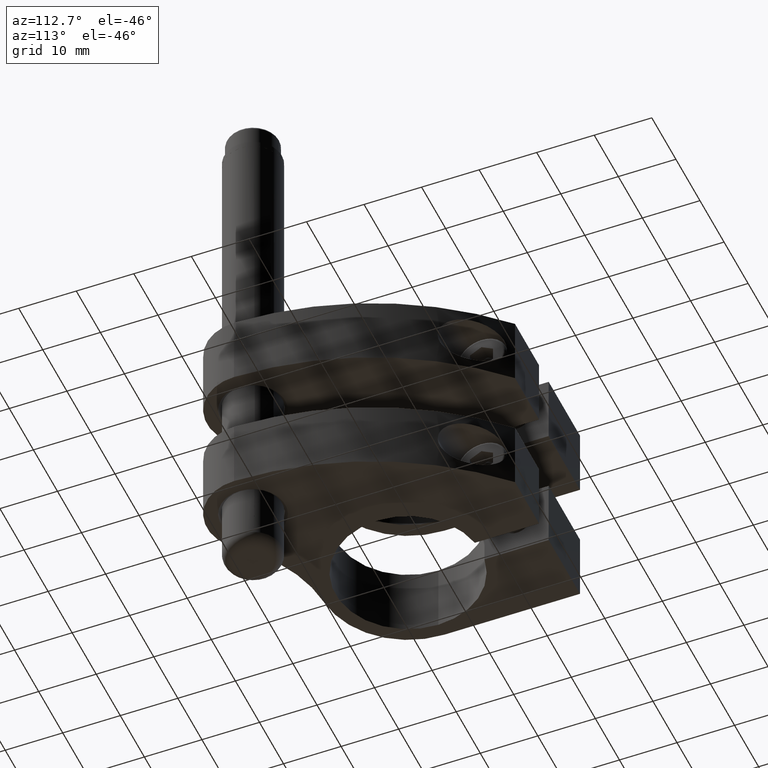
[diagram: clean part render]
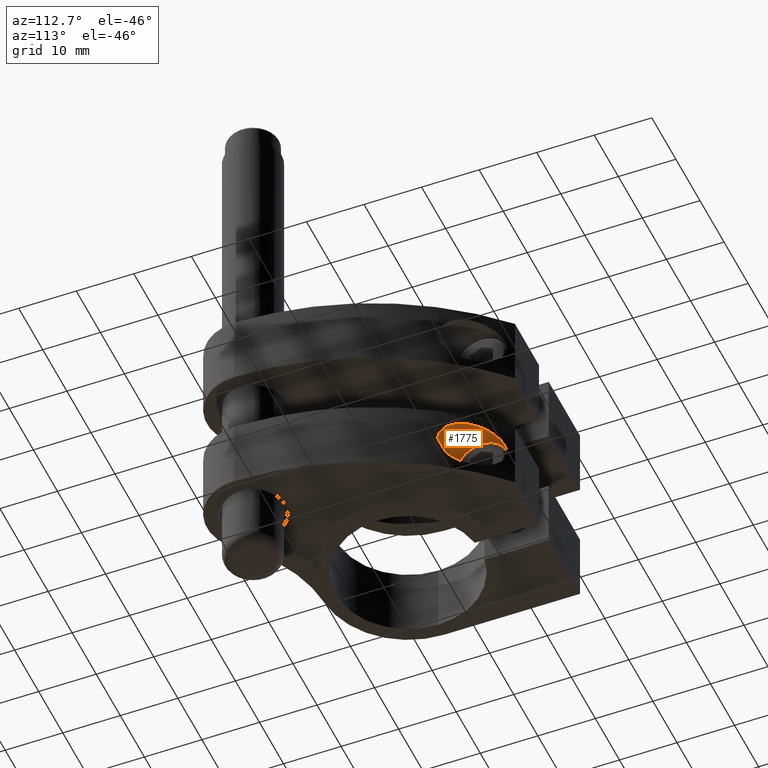
[diagram: same view with one face highlighted and labeled with its STEP entity id]
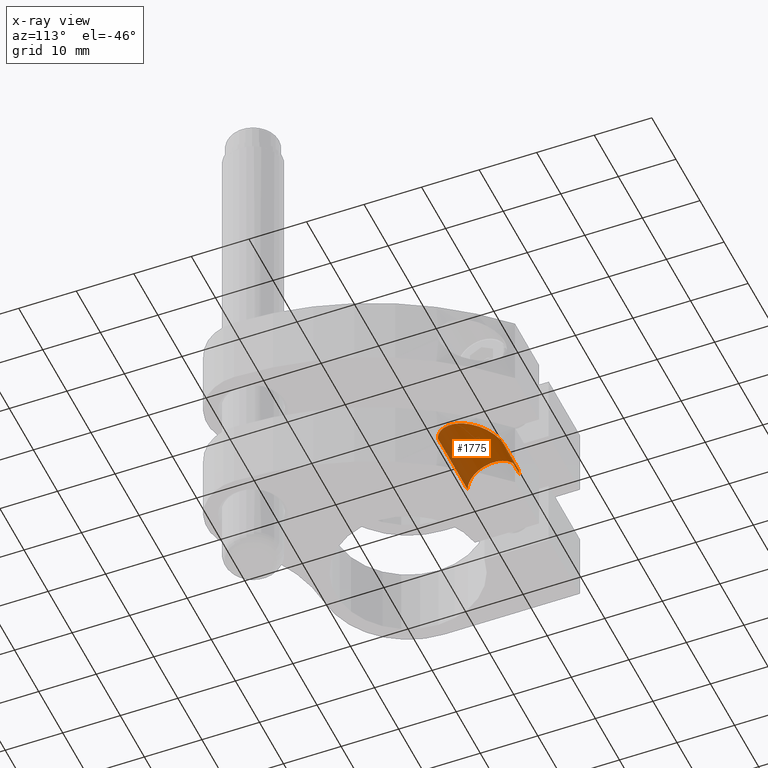
[diagram: x-ray of the same camera — body ghosted, the highlighted face saturated]
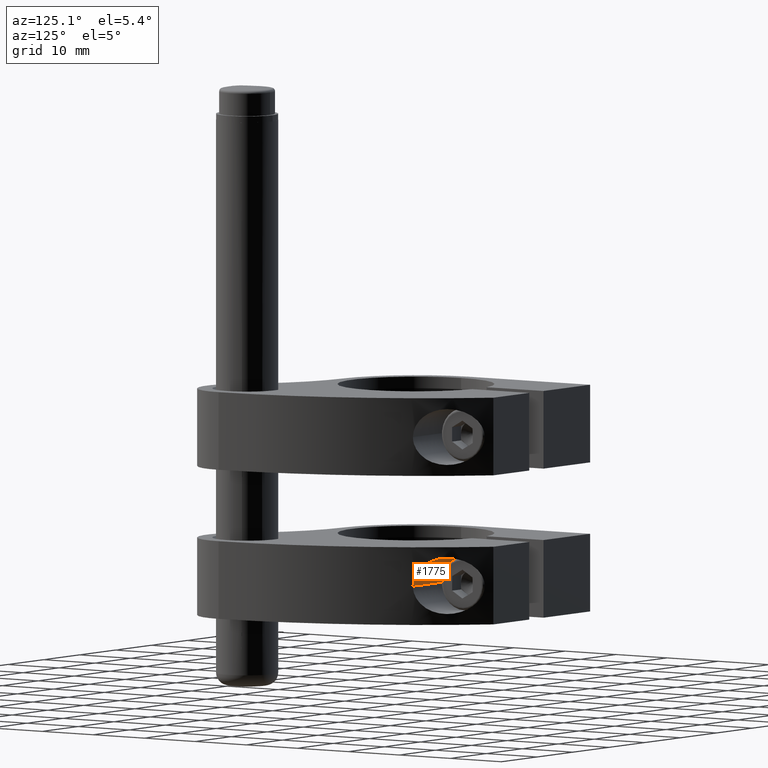
[diagram: same view with one face highlighted and labeled with its STEP entity id]
A machine part, auxiliary view. The second image highlights one B-rep face of the part: STEP entity #1775.
The next image is the same camera in x-ray: the body ghosted, the highlighted face saturated — about 0% of this face is hidden behind the body in this view.
A second angle (auxiliary view) of the same face is appended — the face is thin or edge-on in the first view.
In plain terms, the highlighted cylindrical surface (edge-blend (fillet) strip) has radius 4.5 mm, axis along (1, 0, 0).
Its self-contained STEP definition (entity closure, byte-faithful):
#319 = VERTEX_POINT ( 'NONE', #4362 ) ;
#712 = CARTESIAN_POINT ( 'NONE',  ( 22.00000000000000400, 13.60000000000000300, 5.510910596163092500E-016 ) ) ;
#1347 = CARTESIAN_POINT ( 'NONE',  ( 18.26138746625711600, 16.38812425043762000, 4.170764433054165100 ) ) ;
#1412 = CARTESIAN_POINT ( 'NONE',  ( 17.26674442611490800, 17.70409835429556000, 4.490592142943741600 ) ) ;
#1481 = CARTESIAN_POINT ( 'NONE',  ( 19.69385756879030300, 14.34576069367343700, 2.500520164326630400 ) ) ;
#1775 = ADVANCED_FACE ( 'NONE', ( #4455 ), #11853, .F. ) ;
#1863 = CARTESIAN_POINT ( 'NONE',  ( 14.19333279762864000, 21.33748890009842500, 3.138161982442612800 ) ) ;
#1871 = AXIS2_PLACEMENT_3D ( 'NONE', #4071, #2289, #9161 ) ;
#2119 = DIRECTION ( 'NONE',  ( 1.000000000000000000, 1.734723475976807100E-016, -0.0000000000000000000 ) ) ;
#2289 = DIRECTION ( 'NONE',  ( 1.000000000000000000, 1.734723475976807100E-016, -0.0000000000000000000 ) ) ;
#2358 = VERTEX_POINT ( 'NONE', #16514 ) ;
#2466 = DIRECTION ( 'NONE',  ( -1.927470528863117600E-016, 1.000000000000000000, 0.0000000000000000000 ) ) ;
#3108 = CARTESIAN_POINT ( 'NONE',  ( 17.67545133054979800, 17.17269939465492000, 4.411606226156883400 ) ) ;
#3187 = ORIENTED_EDGE ( 'NONE', *, *, #20841, .T. ) ;
#3250 = CARTESIAN_POINT ( 'NONE',  ( 18.97611665447396900, 15.39220003079903900, 3.606617838323842300 ) ) ;
#3401 = ORIENTED_EDGE ( 'NONE', *, *, #12336, .F. ) ;
#3632 = CARTESIAN_POINT ( 'NONE',  ( 12.99824119246399900, 22.60000000000000500, 0.0000000000000000000 ) ) ;
#4071 = CARTESIAN_POINT ( 'NONE',  ( 22.00000000000000400, 18.10000000000000500, 0.0000000000000000000 ) ) ;
#4362 = CARTESIAN_POINT ( 'NONE',  ( 7.798241192463999400, 22.60000000000000500, 0.0000000000000000000 ) ) ;
#4455 = FACE_OUTER_BOUND ( 'NONE', #7211, .T. ) ;
#4767 = CARTESIAN_POINT ( 'NONE',  ( 17.05723819785161400, 17.97168901311885100, 4.505831385192486500 ) ) ;
#5277 = CARTESIAN_POINT ( 'NONE',  ( 14.76173532736743400, 20.71236401813011300, 3.707173352031650100 ) ) ;
#5353 = CARTESIAN_POINT ( 'NONE',  ( 13.68712370514754700, 21.88160524217525100, 2.456760341653663200 ) ) ;
#5524 = B_SPLINE_CURVE_WITH_KNOTS ( 'NONE', 3,
 ( #19780, #11619, #16472, #21750, #13398, #9768, #6686, #16748, #1481, #18239, #21615, #3250, #13273, #11401, #1347, #11543, #3108, #1412, #4767, #16539, #14929, #16608, #18309, #8229, #5277, #1863, #16967, #5353, #16897, #13478, #8518, #13559, #11997, #8449, #20429, #3632 ),
 .UNSPECIFIED., .F., .F.,
 ( 4, 2, 2, 2, 2, 2, 2, 2, 2, 2, 2, 2, 2, 2, 2, 2, 2, 4 ),
 ( 0.01613481676497067700, 0.01713923997325539000, 0.01764145157739775000, 0.01814366318154010700, 0.01914808638982482300, 0.02015250959810954000, 0.02115693280639425300, 0.02216135601467896300, 0.02316577922296367300, 0.02417020243124838600, 0.02517462563953309900, 0.02617904884781781200, 0.02818789526438722500, 0.02919231847267193800, 0.03019674168095664400, 0.03069895328509900100, 0.03120116488924135800, 0.03220558809752606400 ),
 .UNSPECIFIED. ) ;
#6686 = CARTESIAN_POINT ( 'NONE',  ( 19.94537387800840700, 13.96664821119553100, 1.786508046137883100 ) ) ;
#7211 = EDGE_LOOP ( 'NONE', ( #20374, #3401, #3187, #15965 ) ) ;
#7794 = VECTOR ( 'NONE', #8825, 1000.000000000000000 ) ;
#8229 = CARTESIAN_POINT ( 'NONE',  ( 15.16552808978832800, 20.25605627659458800, 3.984755384399814500 ) ) ;
#8449 = CARTESIAN_POINT ( 'NONE',  ( 13.03575805905137700, 22.56159143338349800, 0.6740757662137403200 ) ) ;
#8518 = CARTESIAN_POINT ( 'NONE',  ( 13.28817975726280800, 22.30038511465736700, 1.622542528704412800 ) ) ;
#8656 = CARTESIAN_POINT ( 'NONE',  ( 20.18498905183608700, 13.60000000000000300, 5.510236631846663400E-016 ) ) ;
#8825 = DIRECTION ( 'NONE',  ( 1.000000000000000000, 1.734723475976807100E-016, -0.0000000000000000000 ) ) ;
#9161 = DIRECTION ( 'NONE',  ( 0.0000000000000000000, 1.000000000000000000, 0.0000000000000000000 ) ) ;
#9768 = CARTESIAN_POINT ( 'NONE',  ( 19.98624392958867800, 13.90450898152763200, 1.635577271452365500 ) ) ;
#10932 = CIRCLE ( 'NONE', #16406, 4.500000000000003600 ) ;
#11401 = CARTESIAN_POINT ( 'NONE',  ( 18.45072597826489200, 16.12849468017949300, 4.055231671689678100 ) ) ;
#11543 = CARTESIAN_POINT ( 'NONE',  ( 17.87438473304482400, 16.90931951848130100, 4.348341583741991200 ) ) ;
#11619 = CARTESIAN_POINT ( 'NONE',  ( 20.18498905183608400, 13.60000000000000500, 0.3400427789564554000 ) ) ;
#11853 = CYLINDRICAL_SURFACE ( 'NONE', #1871, 4.500000000000003600 ) ;
#11997 = CARTESIAN_POINT ( 'NONE',  ( 13.14275356766634900, 22.45119853992536100, 1.159575495778982600 ) ) ;
#12020 = CARTESIAN_POINT ( 'NONE',  ( 22.00000000000000400, 22.60000000000000900, 0.0000000000000000000 ) ) ;
#12336 = EDGE_CURVE ( 'NONE', #319, #14228, #10932, .T. ) ;
#13273 = CARTESIAN_POINT ( 'NONE',  ( 18.80762044221705800, 15.63113828759939500, 3.773123239730976400 ) ) ;
#13398 = CARTESIAN_POINT ( 'NONE',  ( 20.05743238986077200, 13.79593519328181700, 1.323738658702646500 ) ) ;
#13478 = CARTESIAN_POINT ( 'NONE',  ( 13.34552276337845100, 22.24064466116151800, 1.769031320604692400 ) ) ;
#13559 = CARTESIAN_POINT ( 'NONE',  ( 13.18692971755844900, 22.40552327909531300, 1.318464509214412900 ) ) ;
#13876 = LINE ( 'NONE', #12020, #7794 ) ;
#14228 = VERTEX_POINT ( 'NONE', #20670 ) ;
#14929 = CARTESIAN_POINT ( 'NONE',  ( 16.42839913676152400, 18.75607486707102100, 4.459599752483091700 ) ) ;
#15911 = CARTESIAN_POINT ( 'NONE',  ( 7.798241192464000300, 18.10000000000000100, 0.0000000000000000000 ) ) ;
#15965 = ORIENTED_EDGE ( 'NONE', *, *, #21871, .F. ) ;
#16406 = AXIS2_PLACEMENT_3D ( 'NONE', #15911, #20757, #2466 ) ;
#16472 = CARTESIAN_POINT ( 'NONE',  ( 20.16037607463725600, 13.63805099690749000, 0.6728767530711220500 ) ) ;
#16514 = CARTESIAN_POINT ( 'NONE',  ( 12.99824119246399900, 22.60000000000000500, 0.0000000000000000000 ) ) ;
#16539 = CARTESIAN_POINT ( 'NONE',  ( 16.63878242071537300, 18.49673689946514800, 4.490164809196078200 ) ) ;
#16608 = CARTESIAN_POINT ( 'NONE',  ( 16.00543629206966400, 19.26852101345588900, 4.353506957001620500 ) ) ;
#16748 = CARTESIAN_POINT ( 'NONE',  ( 19.80747057292049000, 14.17523720575454100, 2.225099783070569900 ) ) ;
#16897 = CARTESIAN_POINT ( 'NONE',  ( 13.53554045731000600, 22.04165186991197700, 2.193403891115904600 ) ) ;
#16967 = CARTESIAN_POINT ( 'NONE',  ( 14.01525872450386400, 21.53030627215200700, 2.927321038629703900 ) ) ;
#18041 = EDGE_CURVE ( 'NONE', #14228, #19169, #18953, .T. ) ;
#18239 = CARTESIAN_POINT ( 'NONE',  ( 19.43692232645569400, 14.72584811730462600, 2.993662127541231000 ) ) ;
#18309 = CARTESIAN_POINT ( 'NONE',  ( 15.79166298334689400, 19.52297767315016900, 4.277189272998414900 ) ) ;
#18953 = LINE ( 'NONE', #712, #21826 ) ;
#19169 = VERTEX_POINT ( 'NONE', #8656 ) ;
#19780 = CARTESIAN_POINT ( 'NONE',  ( 20.18498905183608700, 13.60000000000000300, 5.510236631846663400E-016 ) ) ;
#20374 = ORIENTED_EDGE ( 'NONE', *, *, #18041, .F. ) ;
#20429 = CARTESIAN_POINT ( 'NONE',  ( 12.99824119246400400, 22.60000000000000900, 0.3407159556157599000 ) ) ;
#20670 = CARTESIAN_POINT ( 'NONE',  ( 7.798241192464001200, 13.59999999999999800, 5.510910596163096500E-016 ) ) ;
#20757 = DIRECTION ( 'NONE',  ( 1.000000000000000000, 1.734723475976807100E-016, -0.0000000000000000000 ) ) ;
#20841 = EDGE_CURVE ( 'NONE', #319, #2358, #13876, .T. ) ;
#21615 = CARTESIAN_POINT ( 'NONE',  ( 19.29205902953217900, 14.93770976291951900, 3.215554907226117800 ) ) ;
#21750 = CARTESIAN_POINT ( 'NONE',  ( 20.08784714871297400, 13.74935186708596600, 1.161808431423637900 ) ) ;
#21826 = VECTOR ( 'NONE', #2119, 1000.000000000000000 ) ;
#21871 = EDGE_CURVE ( 'NONE', #19169, #2358, #5524, .T. ) ;